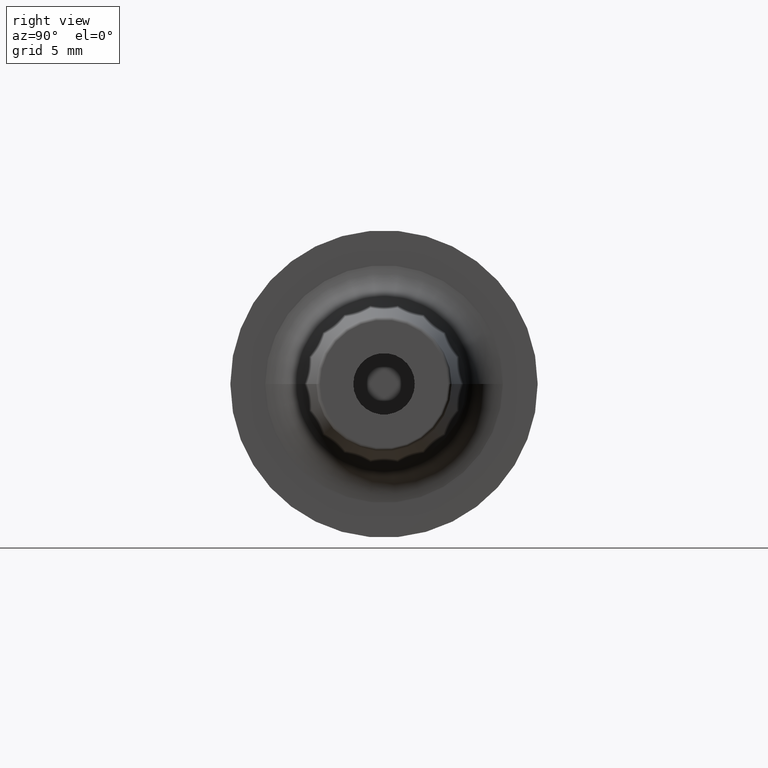
[diagram: clean part render]
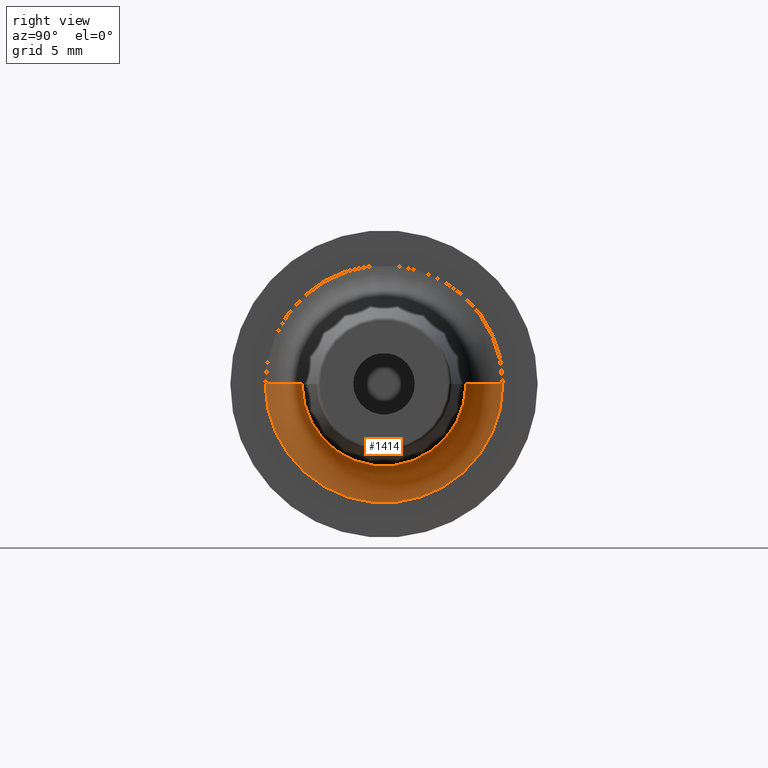
[diagram: same view with one face highlighted and labeled with its STEP entity id]
A machine part, right view. The second image highlights one B-rep face of the part: STEP entity #1414.
In plain terms, the highlighted toroidal blend (fillet) surface has major radius 9.6597 mm and minor (blend) radius 3 mm.
Its self-contained STEP definition (entity closure, byte-faithful):
#464=CARTESIAN_POINT('',(9.95E0,0.E0,0.E0));
#465=DIRECTION('',(1.E0,0.E0,0.E0));
#466=DIRECTION('',(0.E0,-1.E0,0.E0));
#467=AXIS2_PLACEMENT_3D('',#464,#465,#466);
#474=CARTESIAN_POINT('',(1.295E1,-9.659708571185E0,5.129133229254E-12));
#475=DIRECTION('',(0.E0,-5.309797740383E-13,-1.E0));
#476=DIRECTION('',(-1.E0,9.947598300641E-14,0.E0));
#477=AXIS2_PLACEMENT_3D('',#474,#475,#476);
#479=CARTESIAN_POINT('',(1.295E1,9.659708571185E0,-5.134420666408E-12));
#480=DIRECTION('',(0.E0,5.315279466567E-13,1.E0));
#481=DIRECTION('',(-1.E0,-9.888386405995E-14,0.E0));
#482=AXIS2_PLACEMENT_3D('',#479,#480,#481);
#513=CARTESIAN_POINT('',(1.279299213127E1,0.E0,0.E0));
#514=DIRECTION('',(1.E0,0.E0,0.E0));
#515=DIRECTION('',(0.E0,-1.E0,0.E0));
#516=AXIS2_PLACEMENT_3D('',#513,#514,#515);
#668=CARTESIAN_POINT('',(9.95E0,-9.659708571185E0,0.E0));
#669=CARTESIAN_POINT('',(9.95E0,9.659708571185E0,0.E0));
#670=VERTEX_POINT('',#668);
#671=VERTEX_POINT('',#669);
#672=CARTESIAN_POINT('',(1.279299213127E1,-6.663819966921E0,0.E0));
#673=CARTESIAN_POINT('',(1.279299213127E1,6.663819966921E0,0.E0));
#674=VERTEX_POINT('',#672);
#675=VERTEX_POINT('',#673);
#1400=CARTESIAN_POINT('',(1.295E1,0.E0,0.E0));
#1401=DIRECTION('',(1.E0,0.E0,0.E0));
#1402=DIRECTION('',(0.E0,-9.999220202943E-1,1.248812758593E-2));
#1403=AXIS2_PLACEMENT_3D('',#1400,#1401,#1402);
#1404=TOROIDAL_SURFACE('',#1403,9.659708571185E0,3.E0);
#1405=ORIENTED_EDGE('',*,*,#1393,.F.);
#1407=ORIENTED_EDGE('',*,*,#1406,.T.);
#1409=ORIENTED_EDGE('',*,*,#1408,.T.);
#1411=ORIENTED_EDGE('',*,*,#1410,.F.);
#1412=EDGE_LOOP('',(#1405,#1407,#1409,#1411));
#1413=FACE_OUTER_BOUND('',#1412,.F.);
#1414=ADVANCED_FACE('',(#1413),#1404,.F.);
#468=CIRCLE('',#467,9.659708571185E0);
#478=CIRCLE('',#477,3.E0);
#483=CIRCLE('',#482,3.E0);
#517=CIRCLE('',#516,6.663819966921E0);
#1393=EDGE_CURVE('',#670,#671,#468,.T.);
#1406=EDGE_CURVE('',#670,#674,#478,.T.);
#1408=EDGE_CURVE('',#674,#675,#517,.T.);
#1410=EDGE_CURVE('',#671,#675,#483,.T.);